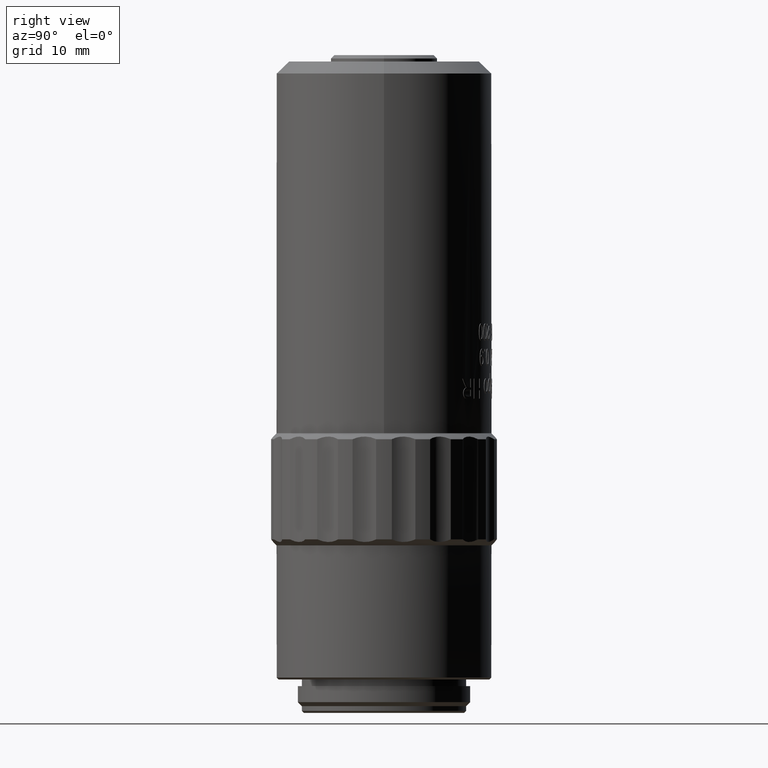
[diagram: clean part render]
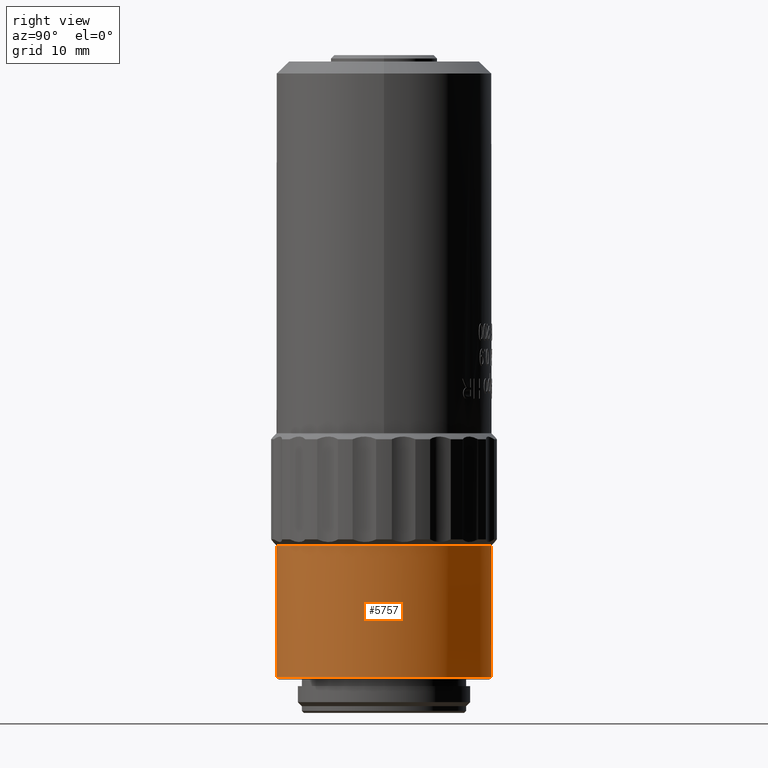
[diagram: same view with one face highlighted and labeled with its STEP entity id]
A machine part, right view. The second image highlights one B-rep face of the part: STEP entity #5757.
In plain terms, the highlighted cylindrical surface (bore or boss wall) has radius 16.1 mm, axis along (-0, -0, -1).
Its self-contained STEP definition (entity closure, byte-faithful):
#1972 = FACE_OUTER_BOUND ( 'NONE', #32800, .T. ) ;
#2110 = CIRCLE ( 'NONE', #19993, 16.10000000000000100 ) ;
#3283 = DIRECTION ( 'NONE',  ( -1.000000000000000000, 0.0000000000000000000, 0.0000000000000000000 ) ) ;
#5757 = ADVANCED_FACE ( 'NONE', ( #1972, #29942 ), #7112, .T. ) ;
#6180 = CARTESIAN_POINT ( 'NONE',  ( 16.10000000000000100, 0.0000000000000000000, 25.10000000000001200 ) ) ;
#6872 = EDGE_CURVE ( 'NONE', #16136, #16136, #34663, .T. ) ;
#7112 = CYLINDRICAL_SURFACE ( 'NONE', #10230, 16.10000000000000100 ) ;
#10230 = AXIS2_PLACEMENT_3D ( 'NONE', #24619, #10903, #27398 ) ;
#10903 = DIRECTION ( 'NONE',  ( -0.0000000000000000000, -0.0000000000000000000, -1.000000000000000000 ) ) ;
#13217 = CARTESIAN_POINT ( 'NONE',  ( 0.0000000000000000000, 0.0000000000000000000, 25.10000000000001200 ) ) ;
#14370 = DIRECTION ( 'NONE',  ( 0.0000000000000000000, 0.0000000000000000000, 1.000000000000000000 ) ) ;
#15991 = DIRECTION ( 'NONE',  ( 1.000000000000000000, 0.0000000000000000000, 0.0000000000000000000 ) ) ;
#16136 = VERTEX_POINT ( 'NONE', #6180 ) ;
#18560 = ORIENTED_EDGE ( 'NONE', *, *, #23896, .T. ) ;
#19993 = AXIS2_PLACEMENT_3D ( 'NONE', #30790, #14370, #3283 ) ;
#21066 = ORIENTED_EDGE ( 'NONE', *, *, #6872, .T. ) ;
#23896 = EDGE_CURVE ( 'NONE', #25560, #25560, #2110, .T. ) ;
#24619 = CARTESIAN_POINT ( 'NONE',  ( 0.0000000000000000000, 0.0000000000000000000, 25.00000000000000000 ) ) ;
#25560 = VERTEX_POINT ( 'NONE', #28549 ) ;
#27398 = DIRECTION ( 'NONE',  ( -1.000000000000000000, 0.0000000000000000000, 0.0000000000000000000 ) ) ;
#28549 = CARTESIAN_POINT ( 'NONE',  ( -16.10000000000000100, 0.0000000000000000000, 5.299999999999978500 ) ) ;
#29368 = AXIS2_PLACEMENT_3D ( 'NONE', #13217, #32405, #15991 ) ;
#29942 = FACE_OUTER_BOUND ( 'NONE', #31805, .T. ) ;
#30790 = CARTESIAN_POINT ( 'NONE',  ( 0.0000000000000000000, 0.0000000000000000000, 5.299999999999978500 ) ) ;
#31805 = EDGE_LOOP ( 'NONE', ( #18560 ) ) ;
#32405 = DIRECTION ( 'NONE',  ( -0.0000000000000000000, -0.0000000000000000000, -1.000000000000000000 ) ) ;
#32800 = EDGE_LOOP ( 'NONE', ( #21066 ) ) ;
#34663 = CIRCLE ( 'NONE', #29368, 16.10000000000000100 ) ;